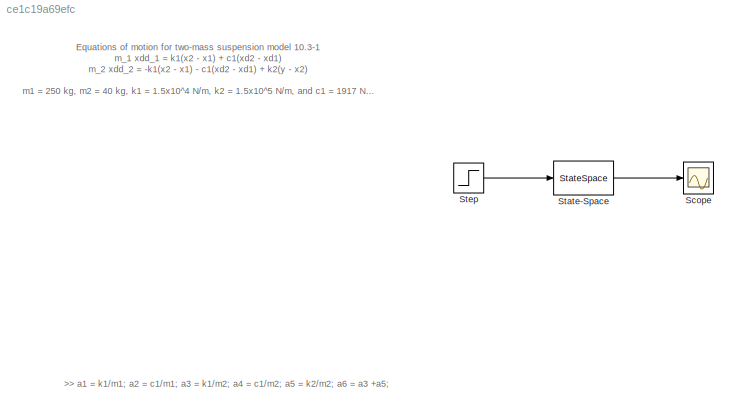
MODEL slx_ce1c19a69efc
KIND model
CONFIG AbsTol = auto
CONFIG EnableMultiTasking = off
CONFIG FixedStep = auto
CONFIG MaxStep = auto
CONFIG MinStep = auto
CONFIG RelTol = 1e-3
CONFIG SampleTimeConstraint = Unconstrained
CONFIG SolverName = VariableStepAuto
CONFIG StartTime = 0.0
CONFIG StopTime = 1.0
BLOCK [Scope] Scope
  Floating = off
  NumInputPorts = 1
  ScopeSpecificationString = Simulink.scopes.TimeScopeBlockCfg('CurrentConfiguration', extmgr.ConfigurationSet(extmgr.Configuration('Core','General UI',true),extmgr.Configuration('Core','Source UI',true),extmgr.Configuration('Sources','WiredSimulink',true),extmgr.Configuration('Visuals','Time Domain',true,'SerializedDisplays',{struct('MinYLimReal','-0.17099','MaxYLimReal','1.53894','YLabelReal','','MinYLimMag','0.00000','MaxY...<+1368ch>
BLOCK [StateSpace] State-Space
  A = [0,1,0,0;-a1,-a2,a1,a2;0,0,0,1;a3,a4,-a6,-a4]
  B = [0;0;0;a5]
  C = [1,0,0,0;0,0,1,0]
  D = [0;0]
  InitialCondition = [0;0;0;0]
BLOCK [Step] Step
  SampleTime = 0
  Time = 0
  VectorParams1D = off
ANNOTATION (root): >> a1 = k1/m1; a2 = c1/m1; a3 = k1/m2; a4 = c1/m2; a5 = k2/m2; a6 = a3 +a5;
ANNOTATION (root): Equations of motion for two-mass suspension model 10.3-1 m_1 xdd_1 = k1(x2 - x1) + c1(xd2 - xd1) m_2 xdd_2 = -k1(x2 - x1) - c1(xd2 - xd1) + k2(y - x2) m1 = 250 kg, m2 = 40 kg, k1 = 1.5x10^4 N/m, k2 = 1.5x10^5 N/m, and c1 = 1917 N* s/m
LINE State-Space:1 -> Scope:1
LINE Step:1 -> State-Space:1
